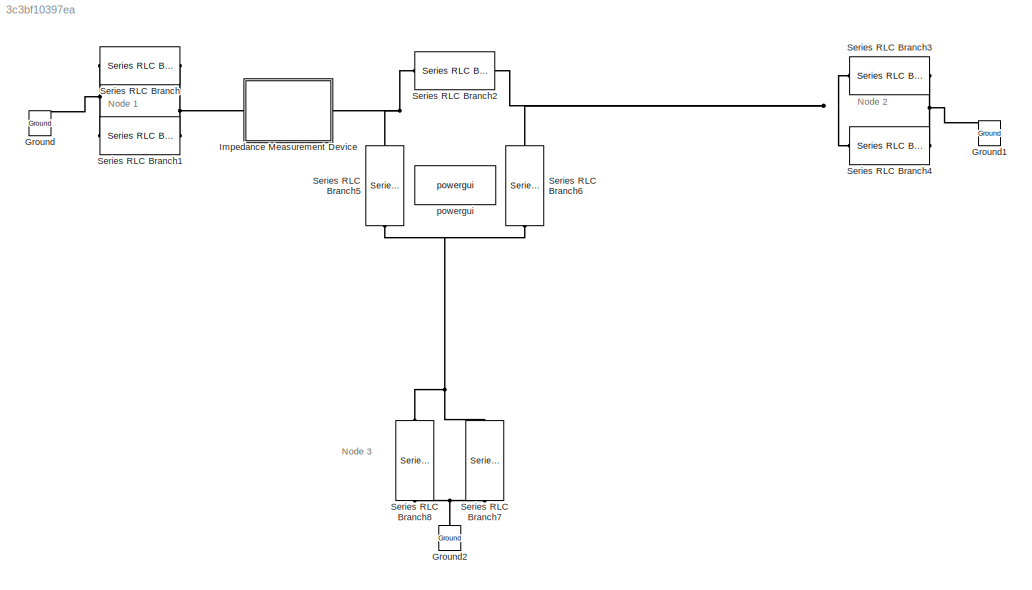
MODEL slx_3c3bf10397ea
KIND model
CONFIG AbsTol = auto
CONFIG EnableMultiTasking = off
CONFIG FixedStep = tStep
CONFIG MaxStep = auto
CONFIG MinStep = auto
CONFIG RelTol = 1e-3
CONFIG SampleTimeConstraint = Unconstrained
CONFIG SolverName = FixedStepAuto
CONFIG StartTime = 0.0
CONFIG StopTime = tStop
BLOCK [Reference] Ground  REF=powerlib/Elements/Ground
  NameLocation = right
  Ports = [0, 0, 0, 0, 0, 1]
  SourceBlock = powerlib/Elements/Ground
  SourceProductBaseCode = PS
  SourceType = Ground
BLOCK [Reference] Ground1  REF=powerlib/Elements/Ground
  NameLocation = left
  Ports = [0, 0, 0, 0, 0, 1]
  SourceBlock = powerlib/Elements/Ground
  SourceProductBaseCode = PS
  SourceType = Ground
BLOCK [Reference] Ground2  REF=powerlib/Elements/Ground
  NameLocation = right
  Ports = [0, 0, 0, 0, 0, 1]
  SourceBlock = powerlib/Elements/Ground
  SourceProductBaseCode = PS
  SourceType = Ground
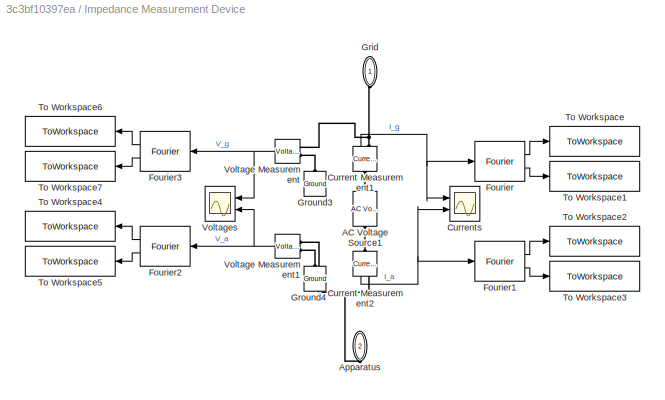
BLOCK [SubSystem] Impedance Measurement Device
  NameLocation = top
  Ports = [0, 0, 0, 0, 0, 1, 1]
  RequestExecContextInheritance = off
BLOCK [Reference] Impedance Measurement Device/AC Voltage Source1  REF=powerlib/Electrical
Sources/AC Voltage Source
  NameLocation = right
  Ports = [0, 0, 0, 0, 0, 1, 1]
  SourceBlock = powerlib/Electrical\nSources/AC Voltage Source
  SourceProductBaseCode = PS
  SourceType = AC Voltage Source
BLOCK [PMIOPort] Impedance Measurement Device/Apparatus
  NameLocation = right
  Port = 2
  Side = Right
BLOCK [Reference] Impedance Measurement Device/Current Measurement1  REF=powerlib/Measurements/Current Measurement
  NameLocation = right
  Ports = [0, 1, 0, 0, 0, 1, 1]
  SourceBlock = powerlib/Measurements/Current Measurement
  SourceProductBaseCode = PS
  SourceType = Current Measurement
  UserDataPersistent = on
BLOCK [Reference] Impedance Measurement Device/Current Measurement2  REF=powerlib/Measurements/Current Measurement
  NameLocation = left
  Ports = [0, 1, 0, 0, 0, 1, 1]
  SourceBlock = powerlib/Measurements/Current Measurement
  SourceProductBaseCode = PS
  SourceType = Current Measurement
  UserDataPersistent = on
BLOCK [Scope] Impedance Measurement Device/Currents
  Floating = off
  NumInputPorts = 2
  Ports = [2]
  ScopeSpecificationString = Simulink.scopes.TimeScopeBlockCfg('CurrentConfiguration', extmgr.ConfigurationSet(extmgr.Configuration('Core','General UI',true),extmgr.Configuration('Core','Source UI',true),extmgr.Configuration('Sources','WiredSimulink',true,'DataLoggingVariableName','ScopeData1'),extmgr.Configuration('Visuals','Time Domain',true,'SerializedDisplays',{struct('MinYLimReal','-0.00411','MaxYLimReal','0.00397','YLab...<+2109ch>
BLOCK [Reference] Impedance Measurement Device/Fourier  REF=powerlib_meascontrol/Measurements/Fourier
  Ports = [1, 2]
  SourceBlock = powerlib_meascontrol/Measurements/Fourier
  SourceProductBaseCode = PS
  SourceType = Fourier
BLOCK [Reference] Impedance Measurement Device/Fourier1  REF=powerlib_meascontrol/Measurements/Fourier
  Ports = [1, 2]
  SourceBlock = powerlib_meascontrol/Measurements/Fourier
  SourceProductBaseCode = PS
  SourceType = Fourier
BLOCK [Reference] Impedance Measurement Device/Fourier2  REF=powerlib_meascontrol/Measurements/Fourier
  Ports = [1, 2]
  SourceBlock = powerlib_meascontrol/Measurements/Fourier
  SourceProductBaseCode = PS
  SourceType = Fourier
BLOCK [Reference] Impedance Measurement Device/Fourier3  REF=powerlib_meascontrol/Measurements/Fourier
  Ports = [1, 2]
  SourceBlock = powerlib_meascontrol/Measurements/Fourier
  SourceProductBaseCode = PS
  SourceType = Fourier
BLOCK [PMIOPort] Impedance Measurement Device/Grid
  NameLocation = left
  Side = Left
BLOCK [Reference] Impedance Measurement Device/Ground3  REF=powerlib/Elements/Ground
  NameLocation = right
  Ports = [0, 0, 0, 0, 0, 1]
  SourceBlock = powerlib/Elements/Ground
  SourceProductBaseCode = PS
  SourceType = Ground
BLOCK [Reference] Impedance Measurement Device/Ground4  REF=powerlib/Elements/Ground
  NameLocation = right
  Ports = [0, 0, 0, 0, 0, 1]
  SourceBlock = powerlib/Elements/Ground
  SourceProductBaseCode = PS
  SourceType = Ground
BLOCK [ToWorkspace] Impedance Measurement Device/To Workspace
  FixptAsFi = on
  MaxDataPoints = inf
  Ports = [1]
  SampleTime = -1
  VariableName = I_g_mag
BLOCK [ToWorkspace] Impedance Measurement Device/To Workspace1
  FixptAsFi = on
  MaxDataPoints = inf
  Ports = [1]
  SampleTime = -1
  VariableName = I_g_phase
BLOCK [ToWorkspace] Impedance Measurement Device/To Workspace2
  FixptAsFi = on
  MaxDataPoints = inf
  Ports = [1]
  SampleTime = -1
  VariableName = I_a_mag
BLOCK [ToWorkspace] Impedance Measurement Device/To Workspace3
  FixptAsFi = on
  MaxDataPoints = inf
  Ports = [1]
  SampleTime = -1
  VariableName = I_a_phase
BLOCK [ToWorkspace] Impedance Measurement Device/To Workspace4
  FixptAsFi = on
  MaxDataPoints = inf
  Ports = [1]
  SampleTime = -1
  VariableName = V_a_mag
BLOCK [ToWorkspace] Impedance Measurement Device/To Workspace5
  FixptAsFi = on
  MaxDataPoints = inf
  Ports = [1]
  SampleTime = -1
  VariableName = V_a_phase
BLOCK [ToWorkspace] Impedance Measurement Device/To Workspace6
  FixptAsFi = on
  MaxDataPoints = inf
  Ports = [1]
  SampleTime = -1
  VariableName = V_g_mag
BLOCK [ToWorkspace] Impedance Measurement Device/To Workspace7
  FixptAsFi = on
  MaxDataPoints = inf
  Ports = [1]
  SampleTime = -1
  VariableName = V_g_phase
BLOCK [Reference] Impedance Measurement Device/Voltage Measurement  REF=powerlib/Measurements/Voltage Measurement
  NameLocation = top
  Ports = [0, 1, 0, 0, 0, 2]
  SourceBlock = powerlib/Measurements/Voltage Measurement
  SourceProductBaseCode = PS
  SourceType = Voltage Measurement
  UserDataPersistent = on
BLOCK [Reference] Impedance Measurement Device/Voltage Measurement1  REF=powerlib/Measurements/Voltage Measurement
  NameLocation = top
  Ports = [0, 1, 0, 0, 0, 2]
  SourceBlock = powerlib/Measurements/Voltage Measurement
  SourceProductBaseCode = PS
  SourceType = Voltage Measurement
  UserDataPersistent = on
BLOCK [Scope] Impedance Measurement Device/Voltages
  Floating = off
  NameLocation = top
  NumInputPorts = 2
  Ports = [2]
  ScopeSpecificationString = Simulink.scopes.TimeScopeBlockCfg('CurrentConfiguration', extmgr.ConfigurationSet(extmgr.Configuration('Core','General UI',true),extmgr.Configuration('Core','Source UI',true),extmgr.Configuration('Sources','WiredSimulink',true),extmgr.Configuration('Visuals','Time Domain',true,'SerializedDisplays',{struct('MinYLimReal','-42.59631','MaxYLimReal','33.53427','YLabelReal','','MinYLimMag','0.00000','Ma...<+2101ch>
BLOCK [Reference] Series RLC Branch  REF=powerlib/Elements/Series RLC Branch
  Ports = [0, 0, 0, 0, 0, 1, 1]
  SourceBlock = powerlib/Elements/Series RLC Branch
  SourceProductBaseCode = PS
  SourceType = Series RLC Branch
BLOCK [Reference] Series RLC Branch1  REF=powerlib/Elements/Series RLC Branch
  Ports = [0, 0, 0, 0, 0, 1, 1]
  SourceBlock = powerlib/Elements/Series RLC Branch
  SourceProductBaseCode = PS
  SourceType = Series RLC Branch
BLOCK [Reference] Series RLC Branch2  REF=powerlib/Elements/Series RLC Branch
  Ports = [0, 0, 0, 0, 0, 1, 1]
  SourceBlock = powerlib/Elements/Series RLC Branch
  SourceProductBaseCode = PS
  SourceType = Series RLC Branch
BLOCK [Reference] Series RLC Branch3  REF=powerlib/Elements/Series RLC Branch
  Ports = [0, 0, 0, 0, 0, 1, 1]
  SourceBlock = powerlib/Elements/Series RLC Branch
  SourceProductBaseCode = PS
  SourceType = Series RLC Branch
BLOCK [Reference] Series RLC Branch4  REF=powerlib/Elements/Series RLC Branch
  Ports = [0, 0, 0, 0, 0, 1, 1]
  SourceBlock = powerlib/Elements/Series RLC Branch
  SourceProductBaseCode = PS
  SourceType = Series RLC Branch
BLOCK [Reference] Series RLC Branch5  REF=powerlib/Elements/Series RLC Branch
  NameLocation = left
  Ports = [0, 0, 0, 0, 0, 1, 1]
  SourceBlock = powerlib/Elements/Series RLC Branch
  SourceProductBaseCode = PS
  SourceType = Series RLC Branch
BLOCK [Reference] Series RLC Branch6  REF=powerlib/Elements/Series RLC Branch
  NameLocation = left
  Ports = [0, 0, 0, 0, 0, 1, 1]
  SourceBlock = powerlib/Elements/Series RLC Branch
  SourceProductBaseCode = PS
  SourceType = Series RLC Branch
BLOCK [Reference] Series RLC Branch7  REF=powerlib/Elements/Series RLC Branch
  NameLocation = left
  Ports = [0, 0, 0, 0, 0, 1, 1]
  SourceBlock = powerlib/Elements/Series RLC Branch
  SourceProductBaseCode = PS
  SourceType = Series RLC Branch
BLOCK [Reference] Series RLC Branch8  REF=powerlib/Elements/Series RLC Branch
  NameLocation = left
  Ports = [0, 0, 0, 0, 0, 1, 1]
  SourceBlock = powerlib/Elements/Series RLC Branch
  SourceProductBaseCode = PS
  SourceType = Series RLC Branch
BLOCK [Reference] powergui  REF=powerlib/powergui
  Ports = []
  Priority = 1
  SourceBlock = powerlib/powergui
  SourceProductBaseCode = PS
  SourceType = PSB option menu block
ANNOTATION (root): Node 1
ANNOTATION (root): Node 2
ANNOTATION (root): Node 3
NET Impedance Measurement Device/Current Measurement1:1 -> Impedance Measurement Device/Currents:1, Impedance Measurement Device/Fourier:1
NET Impedance Measurement Device/Current Measurement2:1 -> Impedance Measurement Device/Currents:2, Impedance Measurement Device/Fourier1:1
LINE Impedance Measurement Device/Fourier1:1 -> Impedance Measurement Device/To Workspace2:1
LINE Impedance Measurement Device/Fourier1:2 -> Impedance Measurement Device/To Workspace3:1
LINE Impedance Measurement Device/Fourier2:1 -> Impedance Measurement Device/To Workspace4:1
LINE Impedance Measurement Device/Fourier2:2 -> Impedance Measurement Device/To Workspace5:1
LINE Impedance Measurement Device/Fourier3:1 -> Impedance Measurement Device/To Workspace6:1
LINE Impedance Measurement Device/Fourier3:2 -> Impedance Measurement Device/To Workspace7:1
LINE Impedance Measurement Device/Fourier:1 -> Impedance Measurement Device/To Workspace:1
LINE Impedance Measurement Device/Fourier:2 -> Impedance Measurement Device/To Workspace1:1
NET Impedance Measurement Device/Voltage Measurement1:1 -> Impedance Measurement Device/Fourier2:1, Impedance Measurement Device/Voltages:2
NET Impedance Measurement Device/Voltage Measurement:1 -> Impedance Measurement Device/Fourier3:1, Impedance Measurement Device/Voltages:1
PNET net1: Ground1:LConn1 -- Series RLC Branch3:RConn1 -- Series RLC Branch4:RConn1
PNET net2: Ground2:LConn1 -- Series RLC Branch7:RConn1 -- Series RLC Branch8:RConn1
PNET net3: Ground:LConn1 -- Series RLC Branch1:RConn1 -- Series RLC Branch:RConn1
PLINE Impedance Measurement Device/AC Voltage Source1:LConn1 -- Impedance Measurement Device/Current Measurement2:LConn1
PLINE Impedance Measurement Device/AC Voltage Source1:RConn1 -- Impedance Measurement Device/Current Measurement1:LConn1
PNET net4: Impedance Measurement Device/Apparatus:RConn1 -- Impedance Measurement Device/Current Measurement2:RConn1 -- Impedance Measurement Device/Voltage Measurement1:LConn1
PNET net5: Impedance Measurement Device/Current Measurement1:RConn1 -- Impedance Measurement Device/Grid:RConn1 -- Impedance Measurement Device/Voltage Measurement:LConn1
PLINE Impedance Measurement Device/Ground3:LConn1 -- Impedance Measurement Device/Voltage Measurement:LConn2
PLINE Impedance Measurement Device/Ground4:LConn1 -- Impedance Measurement Device/Voltage Measurement1:LConn2
PNET net6: Impedance Measurement Device:LConn1 -- Series RLC Branch2:RConn1 -- Series RLC Branch5:LConn1
PNET net7: Impedance Measurement Device:RConn1 -- Series RLC Branch1:LConn1 -- Series RLC Branch:LConn1
PNET net8: Series RLC Branch2:LConn1 -- Series RLC Branch3:LConn1 -- Series RLC Branch4:LConn1 -- Series RLC Branch6:LConn1
PNET net9: Series RLC Branch5:RConn1 -- Series RLC Branch6:RConn1 -- Series RLC Branch7:LConn1 -- Series RLC Branch8:LConn1
note: NET lines group one-source signal fan-out (src -> all destinations, sorted); 1:1 wires keep LINE; PNET lines group multi-terminal physical nets as a canonical sorted terminal list (undirected conserving connections); 2-terminal nets keep the pairwise PLINE form
